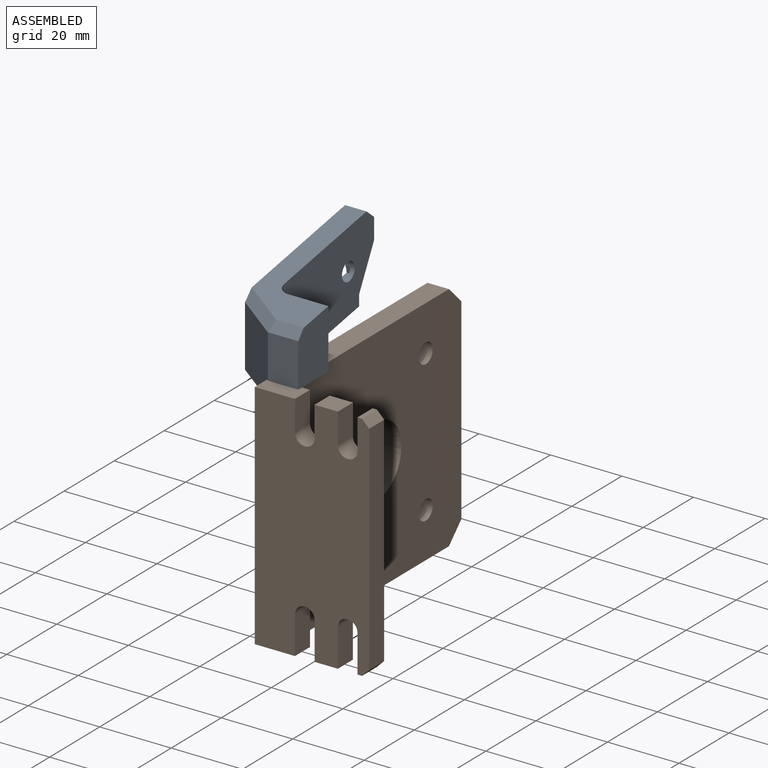
[diagram: assembled view]
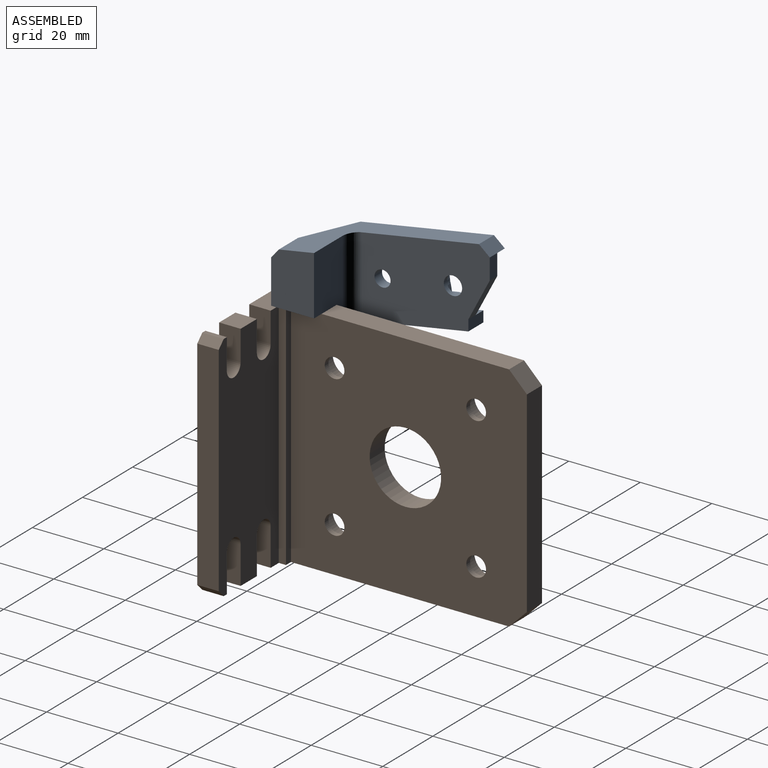
[diagram: assembled view, second angle]
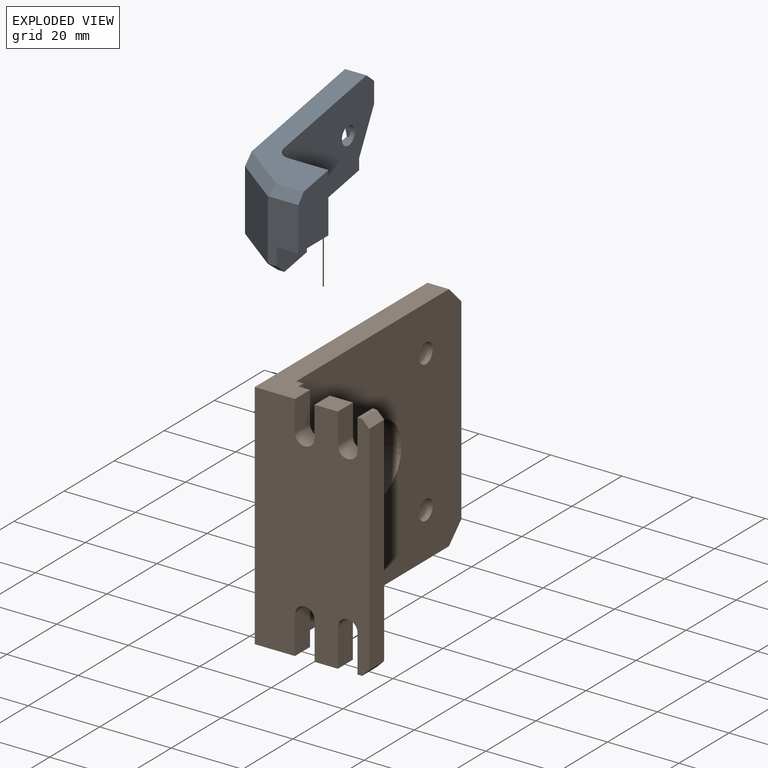
[diagram: exploded view]
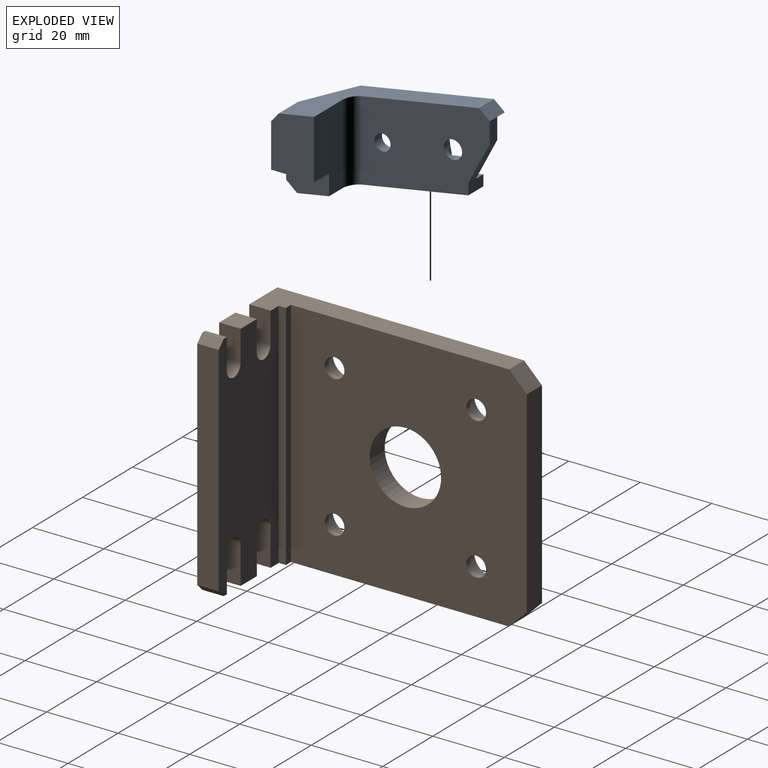
[diagram: exploded view, second angle]
ASSEMBLY  parts=2 mates=2
PART A: 46 faces, bbox 51x20.5x30.3 mm
  f0: plane 1.9x1.23mm, normal (-0.98,0,0.17), area 2.4mm2, adj f5,f8,f38,f45
  f1: plane 1.9x1.23mm, normal (-0.17,0,-0.98), area 2.4mm2, adj f4,f9,f38,f45
  f2: plane 1.9x1.23mm, normal (0.98,0,-0.17), area 2.4mm2, adj f10,f38,f44,f45
  f3: plane 1.9x1.23mm, normal (0.17,0,0.98), area 2.4mm2, adj f6,f7,f38,f45
  f4: plane 2.23x1.9mm, normal (0,-1,0), area 1.1mm2, adj f1,f9,f45
  f5: plane 2.23x1.9mm, normal (0,-1,0), area 1.1mm2, adj f0,f8,f45
  f6: plane 2.23x1.9mm, normal (0,-1,0), area 1.1mm2, adj f3,f7,f45
  f7: plane 1.9x1.23mm, normal (-0.98,0,0.17), area 2.4mm2, adj f3,f6,f38,f45
  f8: plane 1.9x1.23mm, normal (-0.17,0,-0.98), area 2.4mm2, adj f0,f5,f38,f45
  f9: plane 1.9x1.23mm, normal (0.98,0,-0.17), area 2.4mm2, adj f1,f4,f38,f45
  f10: plane 1.9x1.23mm, normal (0.17,0,0.98), area 2.4mm2, adj f2,f38,f44,f45
  f11: plane 16.54x12mm, normal (0,1,0), area 183.4mm2, adj f18,f19,f24,f39,f42
  f12: plane 41.96x14.5mm, normal (0.17,0,0.98), area 279.8mm2, adj f13,f17,f20,f25,f39,f40,f41,f43
  f13: plane 3.04x2.61mm, normal (-0.64,0,0.77), area 8.6mm2, adj f12,f18,f21,f25,f43
  f14: plane 38x21.37mm, normal (0,-1,0), area 482.9mm2, adj f15,f16,f26,f27,f28,f29,f30,f31
  f15: plane 5.81x3mm, normal (1,0,0), area 17.4mm2, adj f14,f16,f22,f41
  f16: plane 11.45x5.99mm, normal (0.89,0,0.46), area 38.8mm2, adj f14,f15,f17,f41
  f17: plane 6x3.05mm, normal (1,0,0), area 18.3mm2, adj f12,f16,f20,f26,f41
  f18: plane 17.07x8.5mm, normal (-1,0,0), area 116.1mm2, adj f11,f13,f21,f23,f24,f42,f43
  f19: plane 45.81x20.5mm, normal (-0.17,0,-0.98), area 371.1mm2, adj f11,f20,f22,f23,f24,f39,f40,f41
  f20: plane 43x28.76mm, normal (0,-1,0), area 342.1mm2, adj f12,f17,f19,f21,f22,f23,f25,f26
  f21: plane 18.47x12mm, normal (-0.83,-0.55,0), area 246.2mm2, adj f13,f18,f20,f23,f25
  f22: plane 6x3.04mm, normal (0.64,0,-0.77), area 23.8mm2, adj f15,f19,f20,f28,f41
  f23: plane 12.79x10.67mm, normal (-0.66,-0.37,-0.65), area 51mm2, adj f18,f19,f20,f21,f24
  f24: plane 8.36x2.55mm, normal (-0.77,0,-0.64), area 26.8mm2, adj f11,f18,f19,f23
  f25: plane 12.79x11.49mm, normal (-0.5,-0.42,0.75), area 58.5mm2, adj f12,f13,f20,f21
  f26: plane 22.61x3.99mm, normal (-0.17,0,-0.98), area 68.9mm2, adj f14,f17,f20,f27
  f27: cylinder r=8mm len=15.88mm, axis (0,-1,0), area 75.4mm2, adj f14,f20,f26,f28
  f28: plane 31.38x5.49mm, normal (0.17,0,0.99), area 95.6mm2, adj f14,f20,f22,f27
  f29: cylinder r=2.25mm len=4.5mm, axis (0,-1,0), area 42.4mm2, adj f14,f41
  f30: plane 2.95x0.52mm, normal (-0.98,0,0.17), area 1.5mm2, adj f14,f31,f37,f38
  f31: cylinder r=1.5mm len=3mm, axis (0,-1,0), area 3.5mm2, adj f14,f30,f32,f38
  f32: plane 2.95x0.52mm, normal (-0.17,0,-0.98), area 1.5mm2, adj f14,f31,f33,f38
  f33: cylinder r=1.5mm len=3mm, axis (0,-1,0), area 3.5mm2, adj f14,f32,f34,f38
  f34: plane 2.95x0.52mm, normal (0.98,0,-0.17), area 1.5mm2, adj f14,f33,f35,f38
  f35: cylinder r=1.5mm len=3mm, axis (0,-1,0), area 3.5mm2, adj f14,f34,f36,f38
  f36: plane 2.95x0.52mm, normal (0.17,0,0.98), area 1.5mm2, adj f14,f35,f37,f38
  f37: cylinder r=1.5mm len=3mm, axis (0,-1,0), area 3.5mm2, adj f14,f30,f36,f38
  f38: plane 9.95x9.95mm, normal (0,-1,0), area 32mm2, adj f0,f1,f2,f3,f7,f8,f9,f10
  f39: plane 22.34x11.33mm, normal (1,0,0), area 218.1mm2, adj f11,f12,f19,f40,f42,f43
  f40: cylinder r=3.17mm len=22.9mm, axis (0,0,1), area 111.4mm2, adj f12,f19,f39,f41
  f41: plane 35.83x28.12mm, normal (0,1,0), area 709.6mm2, adj f12,f15,f16,f17,f19,f22,f29,f40
  f42: plane 12x6mm, normal (0,0,1), area 72mm2, adj f11,f18,f39,f43
  f43: plane 12x7.39mm, normal (0,1,0), area 77.7mm2, adj f12,f13,f18,f39,f42
  f44: plane 2.23x1.9mm, normal (0,-1,0), area 1.1mm2, adj f2,f10,f45
  f45: cylinder r=2.57mm len=5.13mm, axis (0,1,0), area 26.2mm2, adj f0,f1,f2,f3,f4,f5,f6,f7
PART B: 43 faces, bbox 32x74x65 mm
  f0: plane 6.5x6mm, normal (0,0,1), area 39mm2, adj f7,f14,f24,f39
  f1: plane 6x1.25mm, normal (0,0,1), area 7.5mm2, adj f9,f18,f24,f39
  f2: cylinder r=2.75mm len=6mm, axis (0,-1,0), area 51.8mm2, adj f10,f11,f24,f39
  f3: cylinder r=2.75mm len=6mm, axis (0,-1,0), area 51.8mm2, adj f15,f16,f24,f39
  f4: plane 6x1.25mm, normal (0,0,-1), area 7.5mm2, adj f16,f17,f24,f39
  f5: plane 6.5x6mm, normal (0,0,-1), area 39mm2, adj f10,f15,f24,f39
  f6: plane 61x6mm, normal (1,0,0), area 366mm2, adj f17,f18,f24,f39
  f7: plane 8.5x6mm, normal (1,0,0), area 51mm2, adj f0,f8,f24,f39
  f8: cylinder r=2.75mm len=6mm, axis (0,-1,0), area 51.8mm2, adj f7,f9,f24,f39
  f9: plane 8.5x6mm, normal (-1,0,0), area 51mm2, adj f1,f8,f24,f39
  f10: plane 10.5x6mm, normal (-1,0,0), area 63mm2, adj f2,f5,f24,f39
  f11: plane 10.5x6mm, normal (1,0,0), area 63mm2, adj f2,f24,f26,f39
  f12: plane 8.5x6mm, normal (1,0,0), area 51mm2, adj f13,f24,f27,f39
  f13: cylinder r=2.75mm len=6mm, axis (0,-1,0), area 51.8mm2, adj f12,f14,f24,f39
  f14: plane 8.5x6mm, normal (-1,0,0), area 51mm2, adj f0,f13,f24,f39
  f15: plane 10.5x6mm, normal (1,0,0), area 63mm2, adj f3,f5,f24,f39
  f16: plane 10.5x6mm, normal (-1,0,0), area 63mm2, adj f3,f4,f24,f39
  f17: plane 6x2mm, normal (0.71,0,-0.71), area 17mm2, adj f4,f6,f24,f39
  f18: plane 6x2mm, normal (0.71,0,0.71), area 17mm2, adj f1,f6,f24,f39
  f19: plane 55x6mm, normal (0,1,0), area 330mm2, adj f25,f38,f41,f42
  f20: cylinder r=2.75mm len=5.5mm, axis (-1,0,0), area 25.9mm2, adj f35,f38
  f21: cylinder r=2.75mm len=5.5mm, axis (-1,0,0), area 25.9mm2, adj f33,f38
  f22: cylinder r=2.75mm len=5.5mm, axis (-1,0,0), area 25.9mm2, adj f31,f38
  f23: cylinder r=2.75mm len=5.5mm, axis (-1,0,0), area 25.9mm2, adj f29,f38
  f24: plane 65x32mm, normal (0,-1,0), area 1819.5mm2, adj f0,f1,f2,f3,f4,f5,f6,f7
  f25: plane 74x65mm, normal (-1,0,0), area 4187.3mm2, adj f19,f24,f26,f27,f28,f30,f32,f34
  f26: plane 69x11.25mm, normal (0,0,-1), area 449.5mm2, adj f11,f24,f25,f37,f38,f39,f40,f42
  f27: plane 69x11.25mm, normal (0,0,1), area 449.5mm2, adj f12,f24,f25,f37,f38,f39,f40,f41
  f28: cylinder r=10mm len=20mm, axis (-1,0,0), area 377mm2, adj f25,f38
  f29: plane 9.5x9.5mm, normal (-1,0,0), area 47.1mm2, adj f23,f30
  f30: cylinder r=4.75mm len=9.5mm, axis (-1,0,0), area 134.3mm2, adj f25,f29
  f31: plane 9.5x9.5mm, normal (-1,0,0), area 47.1mm2, adj f22,f32
  f32: cylinder r=4.75mm len=9.5mm, axis (-1,0,0), area 134.3mm2, adj f25,f31
  f33: plane 9.5x9.5mm, normal (-1,0,0), area 47.1mm2, adj f21,f34
  f34: cylinder r=4.75mm len=9.5mm, axis (-1,0,0), area 134.3mm2, adj f25,f33
  f35: plane 9.5x9.5mm, normal (-1,0,0), area 47.1mm2, adj f20,f36
  f36: cylinder r=4.75mm len=9.5mm, axis (-1,0,0), area 134.3mm2, adj f25,f35
  f37: plane 65x2mm, normal (0,1,0), area 130mm2, adj f26,f27,f38,f40
  f38: plane 66x65mm, normal (1,0,0), area 3855.8mm2, adj f19,f20,f21,f22,f23,f26,f27,f28
  f39: plane 65x24mm, normal (0,1,0), area 1299.5mm2, adj f0,f1,f2,f3,f4,f5,f6,f7
  f40: plane 65x2mm, normal (1,0,0), area 130mm2, adj f26,f27,f37,f39
  f41: plane 6x5mm, normal (0,0.71,0.71), area 42.4mm2, adj f19,f25,f27,f38
  f42: plane 6x5mm, normal (0,0.71,-0.71), area 42.4mm2, adj f19,f25,f26,f38
PLACE A rot(axis=(0.71,0.71,0),180deg) t=(-48.73,-65.28,110.75)mm
PLACE B t=(-57.73,24.13,-13.12)mm
MATE planar A.f42 <-> B.f27  axis (0,0,-1) through (-51.73,-39.32,51.88)mm
MATE parallel A.f11 <-> B.f25  axis (1,0,0) through (-48.73,-39.11,59.55)mm
